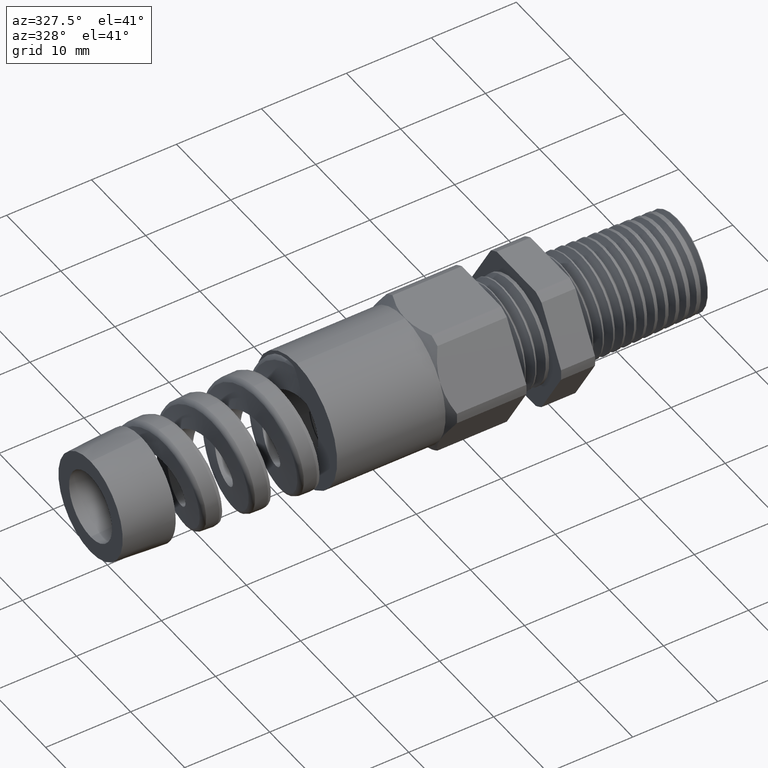
[diagram: clean part render]
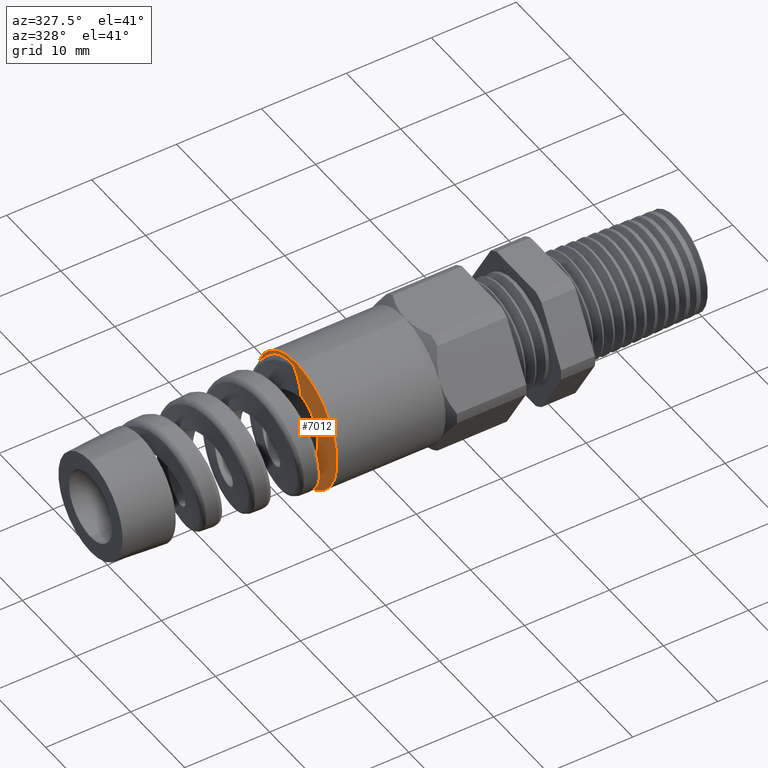
[diagram: same view with one face highlighted and labeled with its STEP entity id]
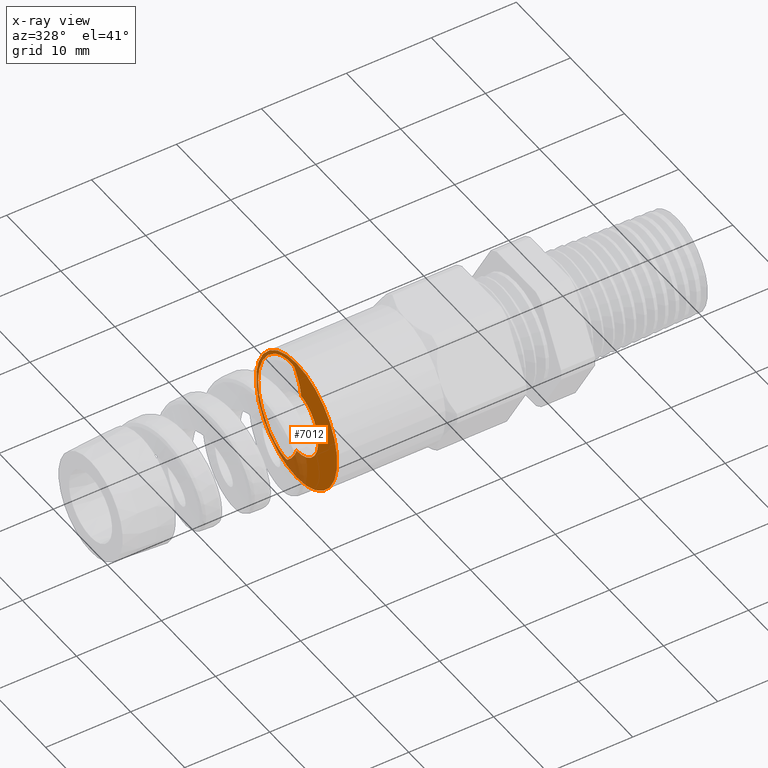
[diagram: x-ray of the same camera — body ghosted, the highlighted face saturated]
A machine part, auxiliary view. The second image highlights one B-rep face of the part: STEP entity #7012.
The next image is the same camera in x-ray: the body ghosted, the highlighted face saturated — about 19% of this face is hidden behind the body in this view.
In plain terms, the highlighted planar face has unit normal (-1, 0, 0).
Its self-contained STEP definition (entity closure, byte-faithful):
#1521 = DIRECTION ( 'NONE',  ( 0.0000000000000000000, 0.0000000000000000000, 1.000000000000000000 ) ) ;
#1522 = CARTESIAN_POINT ( 'NONE',  ( -1.485009101506120200, 0.01417300877502400600, 0.2621125191173698200 ) ) ;
#1523 = CARTESIAN_POINT ( 'NONE',  ( -1.485009101506120400, 0.01514670736914895900, 0.2634334692202617800 ) ) ;
#1524 = CARTESIAN_POINT ( 'NONE',  ( -1.485009101506120600, 0.01663373379399551600, 0.2642118132134282900 ) ) ;
#1525 = CARTESIAN_POINT ( 'NONE',  ( -1.485009101506120400, 0.01959229621632481800, 0.2655334551349337600 ) ) ;
#1526 = CARTESIAN_POINT ( 'NONE',  ( -1.485009101506120400, 0.02113460912888848900, 0.2660290195759779700 ) ) ;
#1527 = CARTESIAN_POINT ( 'NONE',  ( -1.485009101506120400, 0.02579839593892361100, 0.2672791194263027200 ) ) ;
#1528 = CARTESIAN_POINT ( 'NONE',  ( -1.485009101506120400, 0.02899919043127098200, 0.2677986514121263300 ) ) ;
#1529 = CARTESIAN_POINT ( 'NONE',  ( -1.485009101506120200, 0.03861779230951404400, 0.2688845338361129400 ) ) ;
#1530 = CARTESIAN_POINT ( 'NONE',  ( -1.485009101506120200, 0.04509281029501096400, 0.2689631517400591400 ) ) ;
#1531 = CARTESIAN_POINT ( 'NONE',  ( -1.485009101506120600, 0.06443771687391286500, 0.2680555018478483800 ) ) ;
#1532 = CARTESIAN_POINT ( 'NONE',  ( -1.485009101506120600, 0.07702480228338942600, 0.2659081384130995200 ) ) ;
#1533 = CARTESIAN_POINT ( 'NONE',  ( -1.485009101506120400, 0.1015555140997659000, 0.2594644688891553600 ) ) ;
#1534 = CARTESIAN_POINT ( 'NONE',  ( -1.485009101506120200, 0.1135526596392855100, 0.2551144283643451700 ) ) ;
#1535 = CARTESIAN_POINT ( 'NONE',  ( -1.485009101506120200, 0.1368989198875638100, 0.2443033859221106500 ) ) ;
#1537 = CARTESIAN_POINT ( 'NONE',  ( -1.485009101506120400, 0.1480318647897735100, 0.2379426937885771000 ) ) ;
#1538 = CARTESIAN_POINT ( 'NONE',  ( -1.485009101506120600, 0.1586369651422748200, 0.2306486518711340100 ) ) ;
#1539 = DIRECTION ( 'NONE',  ( -1.000000000000000000, 0.0000000000000000000, 0.0000000000000000000 ) ) ;
#1540 = CARTESIAN_POINT ( 'NONE',  ( -1.485009101506120400, 0.0000000000000000000, 0.0000000000000000000 ) ) ;
#1541 = AXIS2_PLACEMENT_3D ( 'NONE', #1540, #1539, #1521 ) ;
#1542 = PLANE ( 'NONE',  #1541 ) ;
#1543 = B_SPLINE_CURVE_WITH_KNOTS ( 'NONE', 3,
 ( #1538, #1537, #1535, #1534, #1533, #1532, #1531, #1530, #1529, #1528, #1527, #1526, #1525, #1524, #1523, #1522 ),
 .UNSPECIFIED., .F., .F.,
 ( 4, 2, 2, 2, 2, 2, 2, 4 ),
 ( 1.226634733346699300E-018, 0.0009770186352104084300, 0.001954037270420815600, 0.002931055905631222900, 0.003419565223236426600, 0.003663819882039027800, 0.003785947211440327900, 0.003908074540841627700 ),
 .UNSPECIFIED. ) ;
#1544 = FACE_OUTER_BOUND ( 'NONE', #7041, .T. ) ;
#1545 = FACE_BOUND ( 'NONE', #7015, .T. ) ;
#1609 = CARTESIAN_POINT ( 'NONE',  ( -1.485009101506120200, -0.03287164756677491600, 0.1530797181412558200 ) ) ;
#1610 = CARTESIAN_POINT ( 'NONE',  ( -1.485009101506120400, -0.03125098319340247800, 0.1629533497718475000 ) ) ;
#1611 = CARTESIAN_POINT ( 'NONE',  ( -1.485009101506120600, -0.02899028988582869100, 0.1726968074489456700 ) ) ;
#1612 = CARTESIAN_POINT ( 'NONE',  ( -1.485009101506120600, -0.02323827265239479900, 0.1919334277862897200 ) ) ;
#1613 = CARTESIAN_POINT ( 'NONE',  ( -1.485009101506121100, -0.01974788515383393500, 0.2013947161583379300 ) ) ;
#1614 = CARTESIAN_POINT ( 'NONE',  ( -1.485009101506120600, -0.007773132510840398100, 0.2287831255441456200 ) ) ;
#1615 = CARTESIAN_POINT ( 'NONE',  ( -1.485009101506119500, 0.002258967459712168700, 0.2459495563727557000 ) ) ;
#1616 = CARTESIAN_POINT ( 'NONE',  ( -1.485009101506120200, 0.01417300877502400600, 0.2621125191173698200 ) ) ;
#1620 = B_SPLINE_CURVE_WITH_KNOTS ( 'NONE', 3,
 ( #1616, #1615, #1614, #1613, #1612, #1611, #1610, #1609 ),
 .UNSPECIFIED., .F., .F.,
 ( 4, 2, 2, 4 ),
 ( 9.359869354493820200E-005, 0.001607522309208940000, 0.002364484117040941200, 0.003121445924872942200 ),
 .UNSPECIFIED. ) ;
#1622 = DIRECTION ( 'NONE',  ( 0.0000000000000000000, 0.0000000000000000000, 1.000000000000000000 ) ) ;
#1623 = DIRECTION ( 'NONE',  ( -1.000000000000000000, 0.0000000000000000000, 0.0000000000000000000 ) ) ;
#1624 = CARTESIAN_POINT ( 'NONE',  ( -1.485009101506120400, 0.0000000000000000000, 0.0000000000000000000 ) ) ;
#1625 = AXIS2_PLACEMENT_3D ( 'NONE', #1624, #1623, #1622 ) ;
#1626 = CIRCLE ( 'NONE', #1625, 0.1565692987783991500 ) ;
#2962 = DIRECTION ( 'NONE',  ( 1.000000000000000000, 0.0000000000000000000, 0.0000000000000000000 ) ) ;
#2963 = CARTESIAN_POINT ( 'NONE',  ( -1.485009101506120400, 0.0000000000000000000, 0.0000000000000000000 ) ) ;
#2964 = AXIS2_PLACEMENT_3D ( 'NONE', #2963, #2962, #3015 ) ;
#2965 = CIRCLE ( 'NONE', #2964, 0.2799365773162240700 ) ;
#2966 = CARTESIAN_POINT ( 'NONE',  ( -1.485009101506120600, 0.1586369651422748200, 0.2306486518711340100 ) ) ;
#2967 = B_SPLINE_CURVE_WITH_KNOTS ( 'NONE', 3,
 ( #3031, #3030, #3029, #3028, #3027, #3026, #3025, #3024, #3023, #3022, #3021, #3020, #3019, #3018, #3017, #3016 ),
 .UNSPECIFIED., .F., .F.,
 ( 4, 2, 2, 2, 2, 2, 2, 4 ),
 ( 1.563658610346375400E-018, 0.0001351851592574301700, 0.0002703703185148587800, 0.0005407406370297159300, 0.001081481274059430600, 0.002162962548118859400, 0.003244443822178289100, 0.004325925096237718700 ),
 .UNSPECIFIED. ) ;
#2968 = CARTESIAN_POINT ( 'NONE',  ( -1.485009101506120400, 0.2115619491529341400, -0.1833194724794221800 ) ) ;
#2969 = CARTESIAN_POINT ( 'NONE',  ( -1.485009101506120200, 0.06624795852956091900, -0.2522143372085272100 ) ) ;
#2970 = CARTESIAN_POINT ( 'NONE',  ( -1.485009101506120200, 0.05164651363569097700, -0.2389668797460899300 ) ) ;
#2971 = CARTESIAN_POINT ( 'NONE',  ( -1.485009101506121300, 0.03861651044039547000, -0.2243672984354910000 ) ) ;
#2972 = CARTESIAN_POINT ( 'NONE',  ( -1.485009101506121100, 0.02165932111772784000, -0.2002412787898366900 ) ) ;
#2973 = CARTESIAN_POINT ( 'NONE',  ( -1.485009101506120200, 0.01645562020534980400, -0.1918279927157393300 ) ) ;
#2974 = CARTESIAN_POINT ( 'NONE',  ( -1.485009101506120000, 0.007187551335151135500, -0.1745820678447516100 ) ) ;
#2975 = CARTESIAN_POINT ( 'NONE',  ( -1.485009101506120200, 0.003091212468229078200, -0.1657072769617976300 ) ) ;
#2976 = CARTESIAN_POINT ( 'NONE',  ( -1.485009101506120400, -0.0004418466057723103200, -0.1565686753202459900 ) ) ;
#2977 = CARTESIAN_POINT ( 'NONE',  ( -1.485009101506120200, 0.06624795852956091900, -0.2522143372085272100 ) ) ;
#2978 = B_SPLINE_CURVE_WITH_KNOTS ( 'NONE', 3,
 ( #2976, #2975, #2974, #2973, #2972, #2971, #2970, #2969 ),
 .UNSPECIFIED., .F., .F.,
 ( 4, 2, 2, 4 ),
 ( 0.0004320082380345118600, 0.001176817685440829200, 0.001921627132847146700, 0.003411246027659779600 ),
 .UNSPECIFIED. ) ;
#2979 = CARTESIAN_POINT ( 'NONE',  ( -1.485009101506120200, -0.03287164756677491600, 0.1530797181412558200 ) ) ;
#2986 = CARTESIAN_POINT ( 'NONE',  ( -1.485009101506120200, 0.01417300877502400600, 0.2621125191173698200 ) ) ;
#2987 = CARTESIAN_POINT ( 'NONE',  ( -1.485009101506120400, -0.0004418466057723103200, -0.1565686753202459900 ) ) ;
#3015 = DIRECTION ( 'NONE',  ( 0.0000000000000000000, -1.776356839400250500E-015, 1.000000000000000000 ) ) ;
#3016 = CARTESIAN_POINT ( 'NONE',  ( -1.485009101506120400, 0.2115619491529341400, -0.1833194724794221800 ) ) ;
#3017 = CARTESIAN_POINT ( 'NONE',  ( -1.485009101506120400, 0.2023448586852737200, -0.1939565619193418200 ) ) ;
#3018 = CARTESIAN_POINT ( 'NONE',  ( -1.485009101506120600, 0.1923141168761900400, -0.2035854994778196200 ) ) ;
#3019 = CARTESIAN_POINT ( 'NONE',  ( -1.485009101506120400, 0.1706763183899228700, -0.2208902471074392900 ) ) ;
#3020 = CARTESIAN_POINT ( 'NONE',  ( -1.485009101506120400, 0.1590298718879243600, -0.2285943395000649100 ) ) ;
#3021 = CARTESIAN_POINT ( 'NONE',  ( -1.485009101506120200, 0.1341343056149534900, -0.2416929018011420000 ) ) ;
#3022 = CARTESIAN_POINT ( 'NONE',  ( -1.485009101506120400, 0.1212009266131028100, -0.2469737649784572200 ) ) ;
#3023 = CARTESIAN_POINT ( 'NONE',  ( -1.485009101506120200, 0.1008566875586709700, -0.2524288054310663800 ) ) ;
#3024 = CARTESIAN_POINT ( 'NONE',  ( -1.485009101506120200, 0.09390935585364536300, -0.2538386285917518200 ) ) ;
#3025 = CARTESIAN_POINT ( 'NONE',  ( -1.485009101506120200, 0.08344074444334176300, -0.2548804952703641600 ) ) ;
#3026 = CARTESIAN_POINT ( 'NONE',  ( -1.485009101506120400, 0.07993400316155699300, -0.2550608453118407000 ) ) ;
#3027 = CARTESIAN_POINT ( 'NONE',  ( -1.485009101506120200, 0.07461903707933678600, -0.2547990980420503600 ) ) ;
#3028 = CARTESIAN_POINT ( 'NONE',  ( -1.485009101506120000, 0.07284794428580543300, -0.2546242638550760800 ) ) ;
#3029 = CARTESIAN_POINT ( 'NONE',  ( -1.485009101506120400, 0.06938776539457276700, -0.2539036008735319800 ) ) ;
#3030 = CARTESIAN_POINT ( 'NONE',  ( -1.485009101506120000, 0.06759385150399667400, -0.2534354259471709400 ) ) ;
#3031 = CARTESIAN_POINT ( 'NONE',  ( -1.485009101506120200, 0.06624795852956091900, -0.2522143372085272100 ) ) ;
#3578 = ORIENTED_EDGE ( 'NONE', *, *, #6278, .T. ) ;
#4018 = DIRECTION ( 'NONE',  ( 0.0000000000000000000, 0.0000000000000000000, 1.000000000000000000 ) ) ;
#4019 = DIRECTION ( 'NONE',  ( -1.000000000000000000, 0.0000000000000000000, 0.0000000000000000000 ) ) ;
#4020 = CARTESIAN_POINT ( 'NONE',  ( -1.485009101506120400, 0.0000000000000000000, 0.0000000000000000000 ) ) ;
#4021 = AXIS2_PLACEMENT_3D ( 'NONE', #4020, #4019, #4018 ) ;
#4022 = CIRCLE ( 'NONE', #4021, 0.2949999999999998700 ) ;
#6021 = DIRECTION ( 'NONE',  ( 0.0000000000000000000, 0.0000000000000000000, 1.000000000000000000 ) ) ;
#6022 = DIRECTION ( 'NONE',  ( -1.000000000000000000, 0.0000000000000000000, 0.0000000000000000000 ) ) ;
#6023 = CARTESIAN_POINT ( 'NONE',  ( -1.485009101506120400, 0.0000000000000000000, 0.0000000000000000000 ) ) ;
#6024 = AXIS2_PLACEMENT_3D ( 'NONE', #6023, #6022, #6021 ) ;
#6025 = CIRCLE ( 'NONE', #6024, 0.2949999999999998700 ) ;
#6026 = CARTESIAN_POINT ( 'NONE',  ( -1.485009101506120400, 3.612708057484691400E-017, 0.2949999999999998700 ) ) ;
#6027 = CARTESIAN_POINT ( 'NONE',  ( -1.485009101506120400, 0.0000000000000000000, -0.2949999999999998700 ) ) ;
#6276 = VERTEX_POINT ( 'NONE', #6027 ) ;
#6277 = VERTEX_POINT ( 'NONE', #6026 ) ;
#6278 = EDGE_CURVE ( 'NONE', #6277, #6276, #6025, .T. ) ;
#7007 = EDGE_CURVE ( 'NONE', #7058, #7042, #1543, .T. ) ;
#7012 = ADVANCED_FACE ( 'NONE', ( #1545, #1544 ), #1542, .T. ) ;
#7015 = EDGE_LOOP ( 'NONE', ( #7034, #7050, #7053, #7056, #7059, #7036 ) ) ;
#7016 = EDGE_CURVE ( 'NONE', #7032, #7049, #1626, .T. ) ;
#7017 = EDGE_CURVE ( 'NONE', #7042, #7049, #1620, .T. ) ;
#7032 = VERTEX_POINT ( 'NONE', #2987 ) ;
#7034 = ORIENTED_EDGE ( 'NONE', *, *, #7016, .F. ) ;
#7036 = ORIENTED_EDGE ( 'NONE', *, *, #7017, .T. ) ;
#7041 = EDGE_LOOP ( 'NONE', ( #7143, #3578 ) ) ;
#7042 = VERTEX_POINT ( 'NONE', #2986 ) ;
#7049 = VERTEX_POINT ( 'NONE', #2979 ) ;
#7050 = ORIENTED_EDGE ( 'NONE', *, *, #7051, .T. ) ;
#7051 = EDGE_CURVE ( 'NONE', #7032, #7052, #2978, .T. ) ;
#7052 = VERTEX_POINT ( 'NONE', #2977 ) ;
#7053 = ORIENTED_EDGE ( 'NONE', *, *, #7054, .T. ) ;
#7054 = EDGE_CURVE ( 'NONE', #7052, #7055, #2967, .T. ) ;
#7055 = VERTEX_POINT ( 'NONE', #2968 ) ;
#7056 = ORIENTED_EDGE ( 'NONE', *, *, #7057, .T. ) ;
#7057 = EDGE_CURVE ( 'NONE', #7055, #7058, #2965, .T. ) ;
#7058 = VERTEX_POINT ( 'NONE', #2966 ) ;
#7059 = ORIENTED_EDGE ( 'NONE', *, *, #7007, .T. ) ;
#7143 = ORIENTED_EDGE ( 'NONE', *, *, #8465, .T. ) ;
#8465 = EDGE_CURVE ( 'NONE', #6276, #6277, #4022, .T. ) ;